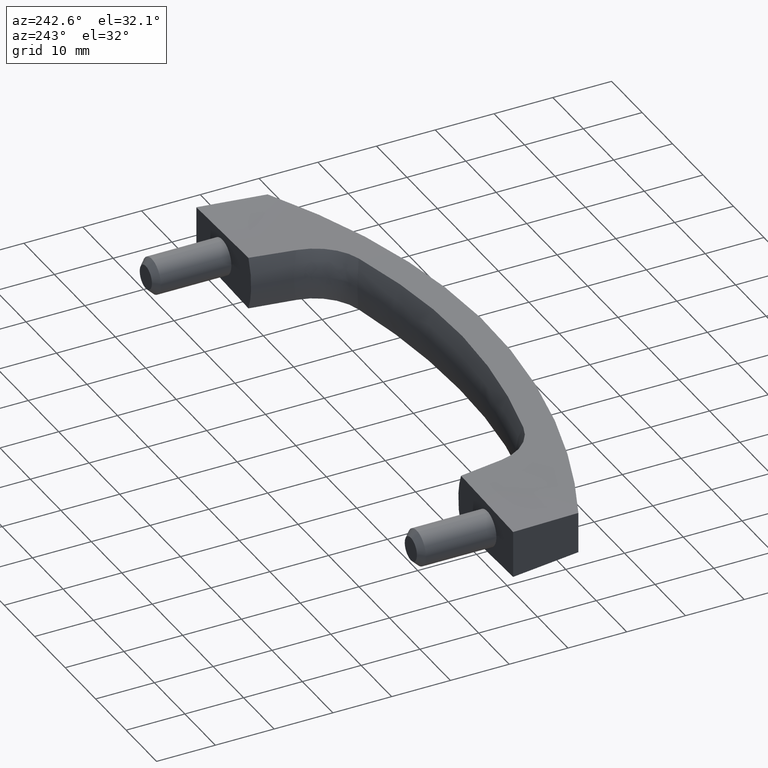
[diagram: clean part render]
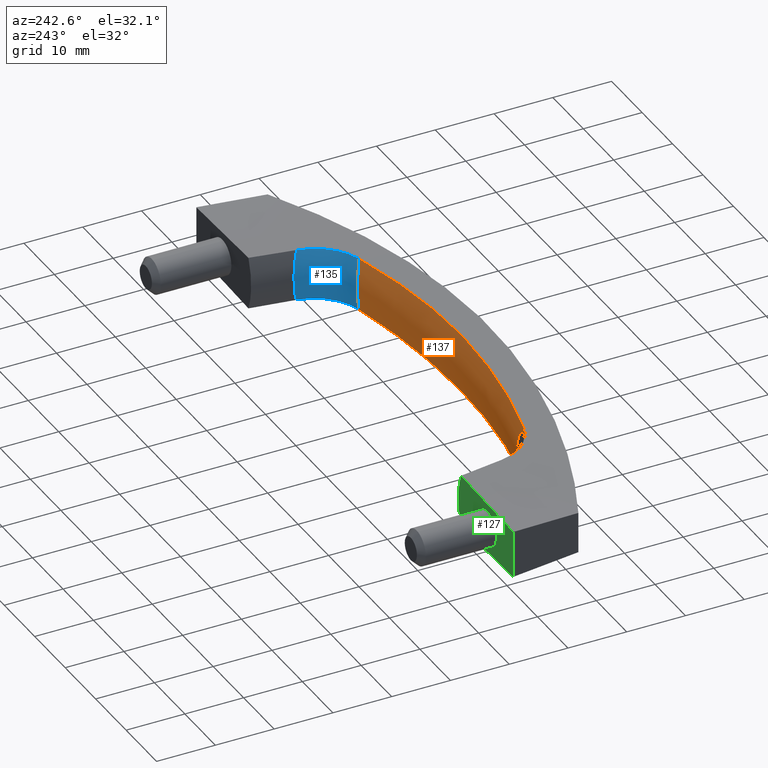
[diagram: same view with three faces highlighted in distinct colors, each labeled with its STEP entity id]
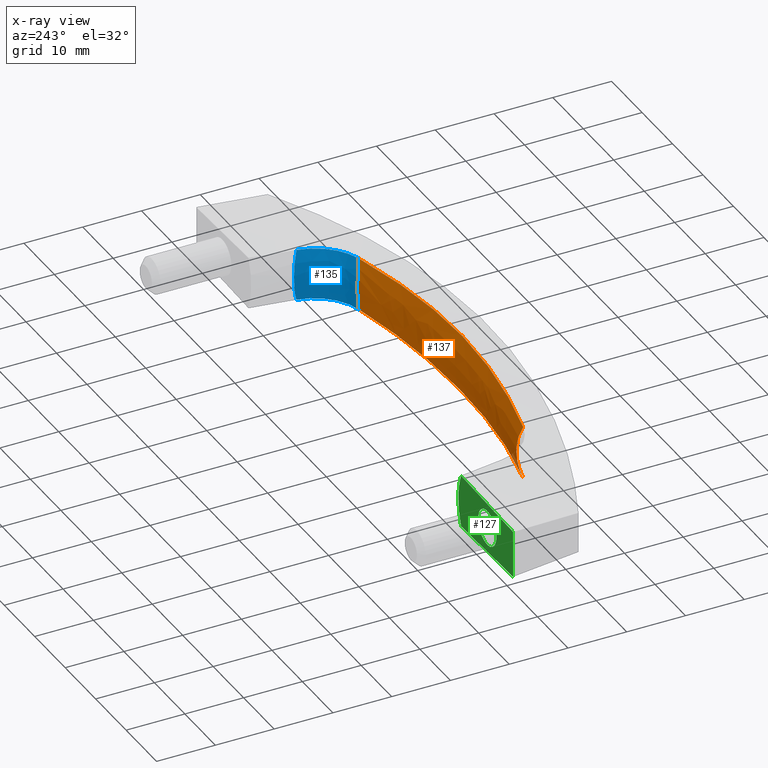
[diagram: x-ray of the same camera — body ghosted, the three highlighted faces saturated]
A machine part, auxiliary view with three faces highlighted in distinct colors.
The next image is the same camera in x-ray (body ghosted, the three faces saturated) — at least one of them is partly hidden behind the body in this view.
Their STEP definitions:

[orange] entity #137 — the highlighted face is a freeform B-spline surface patch.
#137=ADVANCED_FACE('',(#308),#307,.T.);
#307=( BOUNDED_SURFACE() B_SPLINE_SURFACE( 2,2,((#533,#534,#535),(#536,#537,#538),(#539,#540,#541)), .UNSPECIFIED.,.F.,.F.,.F.) B_SPLINE_SURFACE_WITH_KNOTS((3,3),(3,3),(-3.57146278842E+00,-2.71585899099E+00),(4.99483735266E-02,5.23746652897E-01), .UNSPECIFIED. ) GEOMETRIC_REPRESENTATION_ITEM() RATIONAL_B_SPLINE_SURFACE(((9.93526606660E-01,9.65762158628E-01,9.93737543972E-01),(8.56977183283E-01,8.33028656580E-01,8.57159129556E-01),(8.95617688991E-01,8.70589339860E-01,8.95807839095E-01))) REPRESENTATION_ITEM('') SURFACE() );
#308=FACE_OUTER_BOUND('',#542,.T.);
#533=CARTESIAN_POINT('',(-2.70791794804E+01,-5.00103307111E+00,1.48611070524E+01));
#534=CARTESIAN_POINT('',(-1.24314850214E-02,-5.00103307111E+00,2.14134724741E+01));
#535=CARTESIAN_POINT('',(2.70557198976E+01,-5.00103307111E+00,1.48669069322E+01));
#536=CARTESIAN_POINT('',(-2.65378951489E+01,1.69015966202E-02,1.26251501646E+01));
#537=CARTESIAN_POINT('',(-1.21778979101E-02,1.69015966202E-02,1.90465419229E+01));
#538=CARTESIAN_POINT('',(2.65149146883E+01,1.69015966202E-02,1.26308341121E+01));
#539=CARTESIAN_POINT('',(-2.70821991527E+01,5.02893242090E+00,1.48735808238E+01));
#540=CARTESIAN_POINT('',(-1.24328997122E-02,5.02893242090E+00,2.14266769106E+01));
#541=CARTESIAN_POINT('',(2.70587368970E+01,5.02893242090E+00,1.48793813504E+01));
#542=EDGE_LOOP('',(#752,#753,#754,#755));
#752=ORIENTED_EDGE('',*,*,#850,.F.);
#753=ORIENTED_EDGE('',*,*,#855,.F.);
#754=ORIENTED_EDGE('',*,*,#852,.F.);
#755=ORIENTED_EDGE('',*,*,#856,.F.);
#850=EDGE_CURVE('',#1198,#1205,#1206,.T.);
#852=EDGE_CURVE('',#1218,#1219,#1220,.T.);
#855=EDGE_CURVE('',#1219,#1198,#1238,.T.);
#856=EDGE_CURVE('',#1205,#1218,#1244,.T.);
#1198=VERTEX_POINT('',#1647);
#1205=VERTEX_POINT('',#1678);
#1206=(BOUNDED_CURVE() B_SPLINE_CURVE(3,(#1679,#1680,#1681,#1682,#1683,#1684,#1685,#1686,#1687,#1688,#1689,#1690,#1691,#1692,#1693,#1694,#1695,#1696,#1697,#1698),.UNSPECIFIED.,.F.,.F.) B_SPLINE_CURVE_WITH_KNOTS((4,1,1,1,1,1,1,1,1,1,1,1,1,1,1,1,1,4),(5.01032391271E-02,8.13765686135E-02,1.22158677695E-01,1.63065581745E-01,2.04142881568E-01,2.45435184325E-01,2.86986017140E-01,3.28837758395E-01,3.71031586923E-01,4.13607448845E-01,4.56604041392E-01,5.00058812706E-01,5.86527650965E-01,6.71301176410E-01,7.54692940111E-01,8.37036217048E-01,9.18682689601E-01,9.49916614511E-01),.UNSPECIFIED.) CURVE() GEOMETRIC_REPRESENTATION_ITEM() RATIONAL_B_SPLINE_CURVE((1.00000000000E+00,1.00000000000E+00,1.00000000000E+00,1.00000000000E+00,1.00000000000E+00,1.00000000000E+00,1.00000000000E+00,1.00000000000E+00,1.00000000000E+00,1.00000000000E+00,1.00000000000E+00,1.00000000000E+00,1.00000000000E+00,1.00000000000E+00,1.00000000000E+00,1.00000000000E+00,1.00000000000E+00,1.00000000000E+00,1.00000000000E+00,1.00000000000E+00)) REPRESENTATION_ITEM('') );
#1218=VERTEX_POINT('',#1727);
#1219=VERTEX_POINT('',#1728);
#1220=(BOUNDED_CURVE() B_SPLINE_CURVE(3,(#1729,#1730,#1731,#1732,#1733,#1734,#1735,#1736,#1737,#1738,#1739,#1740,#1741,#1742,#1743,#1744,#1745,#1746,#1747,#1748),.UNSPECIFIED.,.F.,.F.) B_SPLINE_CURVE_WITH_KNOTS((4,1,1,1,1,1,1,1,1,1,1,1,1,1,1,1,1,4),(5.01106102151E-02,8.13891816439E-02,1.22176433972E-01,1.63087857125E-01,2.04169165599E-01,2.45465079555E-01,2.87019237803E-01,3.28874128534E-01,3.71071038031E-01,4.13650017099E-01,4.56649864568E-01,5.00108126849E-01,5.86613560427E-01,6.71407478870E-01,7.54802039278E-01,8.37129240514E-01,9.18739650727E-01,9.49955256237E-01),.UNSPECIFIED.) CURVE() GEOMETRIC_REPRESENTATION_ITEM() RATIONAL_B_SPLINE_CURVE((1.00000000000E+00,1.00000000000E+00,1.00000000000E+00,1.00000000000E+00,1.00000000000E+00,1.00000000000E+00,1.00000000000E+00,1.00000000000E+00,1.00000000000E+00,1.00000000000E+00,1.00000000000E+00,1.00000000000E+00,1.00000000000E+00,1.00000000000E+00,1.00000000000E+00,1.00000000000E+00,1.00000000000E+00,1.00000000000E+00,1.00000000000E+00,1.00000000000E+00)) REPRESENTATION_ITEM('') );
#1238=(BOUNDED_CURVE() B_SPLINE_CURVE(3,(#1807,#1808,#1809,#1810,#1811,#1812,#1813,#1814,#1815,#1816,#1817,#1818,#1819,#1820,#1821,#1822,#1823,#1824,#1825,#1826,#1827,#1828,#1829,#1830,#1831,#1832,#1833,#1834,#1835,#1836,#1837,#1838,#1839,#1840,#1841),.UNSPECIFIED.,.F.,.F.) B_SPLINE_CURVE_WITH_KNOTS((4,2,2,2,2,2,2,1,2,2,2,2,2,2,2,2,2,4),(4.20222696700E-06,6.25000000000E-02,1.25000000000E-01,1.87500000000E-01,2.50000000000E-01,3.12500000000E-01,3.75000000000E-01,4.06250000000E-01,4.21875000000E-01,4.37500000000E-01,5.00000000000E-01,6.25000000000E-01,6.87500000000E-01,7.50000000000E-01,8.12500000000E-01,8.75000000000E-01,9.37500000000E-01,9.99995163625E-01),.UNSPECIFIED.) CURVE() GEOMETRIC_REPRESENTATION_ITEM() RATIONAL_B_SPLINE_CURVE((1.00000000000E+00,1.00000000000E+00,1.00000000000E+00,1.00000000000E+00,1.00000000000E+00,1.00000000000E+00,1.00000000000E+00,1.00000000000E+00,1.00000000000E+00,1.00000000000E+00,1.00000000000E+00,1.00000000000E+00,1.00000000000E+00,1.00000000000E+00,1.00000000000E+00,1.00000000000E+00,1.00000000000E+00,1.00000000000E+00,1.00000000000E+00,1.00000000000E+00,1.00000000000E+00,1.00000000000E+00,1.00000000000E+00,1.00000000000E+00,1.00000000000E+00,1.00000000000E+00,1.00000000000E+00,1.00000000000E+00,1.00000000000E+00,1.00000000000E+00,1.00000000000E+00,1.00000000000E+00,1.00000000000E+00,1.00000000000E+00,1.00000000000E+00)) REPRESENTATION_ITEM('') );
#1244=(BOUNDED_CURVE() B_SPLINE_CURVE(3,(#1842,#1843,#1844,#1845,#1846,#1847,#1848,#1849,#1850,#1851,#1852,#1853,#1854,#1855,#1856,#1857,#1858,#1859,#1860,#1861,#1862,#1863,#1864,#1865,#1866,#1867,#1868,#1869,#1870,#1871,#1872,#1873,#1874,#1875,#1876),.UNSPECIFIED.,.F.,.F.) B_SPLINE_CURVE_WITH_KNOTS((4,2,2,2,2,2,2,1,2,2,2,2,2,2,2,2,2,4),(7.89933092900E-06,6.25000000000E-02,1.25000000000E-01,1.87500000000E-01,2.50000000000E-01,3.12500000000E-01,3.75000000000E-01,4.06250000000E-01,4.21875000000E-01,4.37500000000E-01,5.00000000000E-01,6.25000000000E-01,6.87500000000E-01,7.50000000000E-01,8.12500000000E-01,8.75000000000E-01,9.37500000000E-01,9.99992811110E-01),.UNSPECIFIED.) CURVE() GEOMETRIC_REPRESENTATION_ITEM() RATIONAL_B_SPLINE_CURVE((1.00000000000E+00,1.00000000000E+00,1.00000000000E+00,1.00000000000E+00,1.00000000000E+00,1.00000000000E+00,1.00000000000E+00,1.00000000000E+00,1.00000000000E+00,1.00000000000E+00,1.00000000000E+00,1.00000000000E+00,1.00000000000E+00,1.00000000000E+00,1.00000000000E+00,1.00000000000E+00,1.00000000000E+00,1.00000000000E+00,1.00000000000E+00,1.00000000000E+00,1.00000000000E+00,1.00000000000E+00,1.00000000000E+00,1.00000000000E+00,1.00000000000E+00,1.00000000000E+00,1.00000000000E+00,1.00000000000E+00,1.00000000000E+00,1.00000000000E+00,1.00000000000E+00,1.00000000000E+00,1.00000000000E+00,1.00000000000E+00,1.00000000000E+00)) REPRESENTATION_ITEM('') );
#1647=CARTESIAN_POINT('',(2.70090895545E+01,-4.54630436802E+00,1.46756610399E+01));
#1678=CARTESIAN_POINT('',(2.70095754065E+01,4.54628775697E+00,1.46761128301E+01));
#1679=CARTESIAN_POINT('',(2.70090895545E+01,-4.54630436802E+00,1.46756610399E+01));
#1680=CARTESIAN_POINT('',(2.69641790552E+01,-4.45034717228E+00,1.46460118295E+01));
#1681=CARTESIAN_POINT('',(2.68649798829E+01,-4.22662794167E+00,1.45795714677E+01));
#1682=CARTESIAN_POINT('',(2.67217180463E+01,-3.86908159118E+00,1.44813956891E+01));
#1683=CARTESIAN_POINT('',(2.65826884251E+01,-3.47193197829E+00,1.43834056876E+01));
#1684=CARTESIAN_POINT('',(2.64595565307E+01,-3.06559836057E+00,1.42943593780E+01));
#1685=CARTESIAN_POINT('',(2.63525172708E+01,-2.65036629668E+00,1.42150014781E+01));
#1686=CARTESIAN_POINT('',(2.62616400512E+01,-2.22664950828E+00,1.41460178529E+01));
#1687=CARTESIAN_POINT('',(2.61870349635E+01,-1.79488039679E+00,1.40880978005E+01));
#1688=CARTESIAN_POINT('',(2.61288081117E+01,-1.35553927252E+00,1.40419144862E+01));
#1689=CARTESIAN_POINT('',(2.60870747795E+01,-9.09153445531E-01,1.40081263455E+01));
#1690=CARTESIAN_POINT('',(2.60619533284E+01,-4.56276230665E-01,1.39873763545E+01));
#1691=CARTESIAN_POINT('',(2.60508467802E+01,1.51990011319E-01,1.39779630868E+01));
#1692=CARTESIAN_POINT('',(2.60780666891E+01,9.07610217819E-01,1.40010199057E+01));
#1693=CARTESIAN_POINT('',(2.61776281188E+01,1.79538749008E+00,1.40813605656E+01));
#1694=CARTESIAN_POINT('',(2.63424882503E+01,2.65301263121E+00,1.42087330293E+01));
#1695=CARTESIAN_POINT('',(2.65733807891E+01,3.47568037868E+00,1.43782654446E+01));
#1696=CARTESIAN_POINT('',(2.68045180171E+01,4.10321996260E+00,1.45404571318E+01));
#1697=CARTESIAN_POINT('',(2.69641726498E+01,4.45082467450E+00,1.46462678259E+01));
#1698=CARTESIAN_POINT('',(2.70095754065E+01,4.54628775697E+00,1.46761128301E+01));
#1727=CARTESIAN_POINT('',(-2.70083607157E+01,4.54630653269E+00,1.46760137016E+01));
#1728=CARTESIAN_POINT('',(-2.70083776527E+01,-4.54631319703E+00,1.46752387997E+01));
#1729=CARTESIAN_POINT('',(-2.70083607157E+01,4.54630653269E+00,1.46760137016E+01));
#1730=CARTESIAN_POINT('',(-2.69634297569E+01,4.45034444617E+00,1.46463548659E+01));
#1731=CARTESIAN_POINT('',(-2.68641898021E+01,4.22661691181E+00,1.45798917792E+01));
#1732=CARTESIAN_POINT('',(-2.67208776469E+01,3.86905624499E+00,1.44816761587E+01));
#1733=CARTESIAN_POINT('',(-2.65818124983E+01,3.47189252585E+00,1.43836380275E+01));
#1734=CARTESIAN_POINT('',(-2.64586629406E+01,3.06554451934E+00,1.42945384676E+01));
#1735=CARTESIAN_POINT('',(-2.63516239088E+01,2.65029776518E+00,1.42151222617E+01));
#1736=CARTESIAN_POINT('',(-2.62607647224E+01,2.22656603300E+00,1.41460754130E+01));
#1737=CARTESIAN_POINT('',(-2.61861955016E+01,1.79478175571E+00,1.40880873061E+01));
#1738=CARTESIAN_POINT('',(-2.61280220773E+01,1.35542528360E+00,1.40418312573E+01));
#1739=CARTESIAN_POINT('',(-2.60863606219E+01,9.09023955928E-01,1.40079655740E+01));
#1740=CARTESIAN_POINT('',(-2.60613260455E+01,4.56131157505E-01,1.39871341012E+01));
#1741=CARTESIAN_POINT('',(-2.60503700380E+01,-1.52259123283E-01,1.39776020113E+01));
#1742=CARTESIAN_POINT('',(-2.60777386669E+01,-9.08048334834E-01,1.40005392219E+01));
#1743=CARTESIAN_POINT('',(-2.61773361497E+01,-1.79598360318E+00,1.40807982425E+01));
#1744=CARTESIAN_POINT('',(-2.63421009464E+01,-2.65359850582E+00,1.42081062583E+01));
#1745=CARTESIAN_POINT('',(-2.65727515312E+01,-3.47609617738E+00,1.43775599329E+01));
#1746=CARTESIAN_POINT('',(-2.68035949824E+01,-4.10343205481E+00,1.45396677973E+01));
#1747=CARTESIAN_POINT('',(-2.69630392279E+01,-4.45089747712E+00,1.46454148214E+01));
#1748=CARTESIAN_POINT('',(-2.70083776527E+01,-4.54631319703E+00,1.46752387997E+01));
#1807=CARTESIAN_POINT('',(-2.70083776527E+01,-4.54631319703E+00,1.46752387997E+01));
#1808=CARTESIAN_POINT('',(-2.58997967020E+01,-4.57156654375E+00,1.49539948777E+01));
#1809=CARTESIAN_POINT('',(-2.47886685988E+01,-4.59562724488E+00,1.52154196855E+01));
#1810=CARTESIAN_POINT('',(-2.25614801942E+01,-4.64395921185E+00,1.57049150634E+01));
#1811=CARTESIAN_POINT('',(-2.14454177645E+01,-4.66820331160E+00,1.59329745309E+01));
#1812=CARTESIAN_POINT('',(-1.92085008584E+01,-4.71739179139E+00,1.63561074264E+01));
#1813=CARTESIAN_POINT('',(-1.80876455624E+01,-4.74231859653E+00,1.65511774979E+01));
#1814=CARTESIAN_POINT('',(-1.58409585628E+01,-4.79043183861E+00,1.69073811531E+01));
#1815=CARTESIAN_POINT('',(-1.47151266844E+01,-4.81361954101E+00,1.70685133740E+01));
#1816=CARTESIAN_POINT('',(-1.24583939777E+01,-4.85723301927E+00,1.73563379558E+01));
#1817=CARTESIAN_POINT('',(-1.13274942839E+01,-4.87767503836E+00,1.74830360075E+01));
#1818=CARTESIAN_POINT('',(-9.06060325188E+00,-4.91581058788E+00,1.77018347282E+01));
#1819=CARTESIAN_POINT('',(-7.92462167104E+00,-4.93361651198E+00,1.77939878658E+01));
#1820=CARTESIAN_POINT('',(-6.21666410955E+00,-4.95662109969E+00,1.79053389940E+01));
#1821=CARTESIAN_POINT('',(-5.36168820729E+00,-4.96719071073E+00,1.79542901105E+01));
#1822=CARTESIAN_POINT('',(-4.50517674637E+00,-4.97597931889E+00,1.79929301379E+01));
#1823=CARTESIAN_POINT('',(-3.93382311231E+00,-4.98139809919E+00,1.80163718870E+01));
#1824=CARTESIAN_POINT('',(-3.64787030029E+00,-4.98388819794E+00,1.80269368531E+01));
#1825=CARTESIAN_POINT('',(-2.21870693681E+00,-4.99511510143E+00,1.80738519871E+01));
#1826=CARTESIAN_POINT('',(-1.07754462869E+00,-5.00017890868E+00,1.80924819533E+01));
#1827=CARTESIAN_POINT('',(2.33924265709E+00,-4.99961956712E+00,1.80904407923E+01));
#1828=CARTESIAN_POINT('',(4.60819292191E+00,-4.97852933252E+00,1.80120250759E+01));
#1829=CARTESIAN_POINT('',(7.99956449224E+00,-4.93248865789E+00,1.77883744252E+01));
#1830=CARTESIAN_POINT('',(9.12801071877E+00,-4.91473208931E+00,1.76961363307E+01));
#1831=CARTESIAN_POINT('',(1.13810489680E+01,-4.87673180009E+00,1.74774844687E+01));
#1832=CARTESIAN_POINT('',(1.25056326227E+01,-4.85636151013E+00,1.73510121452E+01));
#1833=CARTESIAN_POINT('',(1.47509365249E+01,-4.81290204249E+00,1.70638393703E+01));
#1834=CARTESIAN_POINT('',(1.58716558966E+01,-4.78979669633E+00,1.69031331675E+01));
#1835=CARTESIAN_POINT('',(1.81092884822E+01,-4.74185066424E+00,1.65478780548E+01));
#1836=CARTESIAN_POINT('',(1.92262018707E+01,-4.71700953053E+00,1.63533307650E+01));
#1837=CARTESIAN_POINT('',(2.14563512374E+01,-4.66797307544E+00,1.59312383872E+01));
#1838=CARTESIAN_POINT('',(2.25695876379E+01,-4.64379125348E+00,1.57036953373E+01));
#1839=CARTESIAN_POINT('',(2.47922333489E+01,-4.59555700942E+00,1.52151272960E+01));
#1840=CARTESIAN_POINT('',(2.59016443928E+01,-4.57153219558E+00,1.49541142546E+01));
#1841=CARTESIAN_POINT('',(2.70090895545E+01,-4.54630436802E+00,1.46756610399E+01));
#1842=CARTESIAN_POINT('',(2.70095754065E+01,4.54628775697E+00,1.46761128301E+01));
#1843=CARTESIAN_POINT('',(2.59010449043E+01,4.57154040428E+00,1.49548448979E+01));
#1844=CARTESIAN_POINT('',(2.47899673729E+01,4.59560023889E+00,1.52162473116E+01));
#1845=CARTESIAN_POINT('',(2.25628144891E+01,4.64393163799E+00,1.57057155903E+01));
#1846=CARTESIAN_POINT('',(2.14467367206E+01,4.66817604636E+00,1.59337683779E+01));
#1847=CARTESIAN_POINT('',(1.92097888436E+01,4.71736521059E+00,1.63568873060E+01));
#1848=CARTESIAN_POINT('',(1.80889179291E+01,4.74229256078E+00,1.65519501611E+01));
#1849=CARTESIAN_POINT('',(1.58421994151E+01,4.79040722716E+00,1.69081388996E+01));
#1850=CARTESIAN_POINT('',(1.47163516374E+01,4.81359576515E+00,1.70692634019E+01));
#1851=CARTESIAN_POINT('',(1.24595868255E+01,4.85721093193E+00,1.73570719274E+01));
#1852=CARTESIAN_POINT('',(1.13286709259E+01,4.87765380440E+00,1.74837616415E+01));
#1853=CARTESIAN_POINT('',(9.06174716389E+00,4.91579096111E+00,1.77025430083E+01));
#1854=CARTESIAN_POINT('',(7.92574907183E+00,4.93359779118E+00,1.77946871966E+01));
#1855=CARTESIAN_POINT('',(6.21776652348E+00,4.95660397571E+00,1.79060245257E+01));
#1856=CARTESIAN_POINT('',(5.36277807208E+00,4.96717443677E+00,1.79549686452E+01));
#1857=CARTESIAN_POINT('',(4.50625397619E+00,4.97596396693E+00,1.79936015254E+01));
#1858=CARTESIAN_POINT('',(3.93489189944E+00,4.98138337702E+00,1.80170384757E+01));
#1859=CARTESIAN_POINT('',(3.64893484568E+00,4.98387379837E+00,1.80276010244E+01));
#1860=CARTESIAN_POINT('',(2.21975093924E+00,4.99510234387E+00,1.80745039780E+01));
#1861=CARTESIAN_POINT('',(1.07857212354E+00,5.00016758843E+00,1.80931239872E+01));
#1862=CARTESIAN_POINT('',(-2.33826489718E+00,4.99961270535E+00,1.80910522075E+01));
#1863=CARTESIAN_POINT('',(-4.60724851834E+00,4.97852439582E+00,1.80126145065E+01));
#1864=CARTESIAN_POINT('',(-7.99867039794E+00,4.93248553404E+00,1.77889287336E+01));
#1865=CARTESIAN_POINT('',(-9.12713343933E+00,4.91472937730E+00,1.76966785688E+01));
#1866=CARTESIAN_POINT('',(-1.13802054140E+01,4.87672972529E+00,1.74780019286E+01));
#1867=CARTESIAN_POINT('',(-1.25048059850E+01,4.85635974375E+00,1.73515169335E+01));
#1868=CARTESIAN_POINT('',(-1.47501438210E+01,4.81290080359E+00,1.70643182123E+01));
#1869=CARTESIAN_POINT('',(-1.58708802102E+01,4.78979567557E+00,1.69035987343E+01));
#1870=CARTESIAN_POINT('',(-1.81085469242E+01,4.74184991399E+00,1.65483164260E+01));
#1871=CARTESIAN_POINT('',(-1.92254774224E+01,4.71700881432E+00,1.63537552081E+01));
#1872=CARTESIAN_POINT('',(-2.14556610963E+01,4.66797228293E+00,1.59316343275E+01));
#1873=CARTESIAN_POINT('',(-2.25689146986E+01,4.64379041877E+00,1.57040767316E+01));
#1874=CARTESIAN_POINT('',(-2.47915530814E+01,4.59555707996E+00,1.52154882237E+01));
#1875=CARTESIAN_POINT('',(-2.59009397359E+01,4.57153320769E+00,1.49544705225E+01));
#1876=CARTESIAN_POINT('',(-2.70083607157E+01,4.54630653269E+00,1.46760137016E+01));

[blue] entity #135 — the highlighted face is a freeform B-spline surface patch.
#135=ADVANCED_FACE('',(#288),#287,.F.);
#287=( BOUNDED_SURFACE() B_SPLINE_SURFACE( 2,3,((#471,#472,#473,#474,#475,#476,#477,#478,#479,#480),(#481,#482,#483,#484,#485,#486,#487,#488,#489,#490),(#491,#492,#493,#494,#495,#496,#497,#498,#499,#500)), .UNSPECIFIED.,.F.,.F.,.F.) B_SPLINE_SURFACE_WITH_KNOTS((3,3),(4,2,2,2,4),(5.43510046196E-02,1.09226939032E+01),(6.22924556227E-02,2.11612703864E+00,5.48609420916E+00,8.85606137968E+00,1.09083194965E+01), .UNSPECIFIED. ) GEOMETRIC_REPRESENTATION_ITEM() RATIONAL_B_SPLINE_SURFACE(((9.99994956961E-01,9.99994669131E-01,9.99994404669E-01,9.99993848063E-01,9.99993643005E-01,9.99993641856E-01,9.99993843432E-01,9.99994405354E-01,9.99994669605E-01,9.99994957183E-01),(8.67176646322E-01,8.59595800751E-01,8.52630420611E-01,8.37970556590E-01,8.32569742363E-01,8.32539483741E-01,8.37848590847E-01,8.52648465833E-01,8.59608301227E-01,8.67182505765E-01),(9.99995242191E-01,9.99994970641E-01,9.99994721137E-01,9.99994196012E-01,9.99994002552E-01,9.99994001468E-01,9.99994191643E-01,9.99994721783E-01,9.99994971089E-01,9.99995242401E-01))) REPRESENTATION_ITEM('') SURFACE() );
#288=FACE_OUTER_BOUND('',#501,.T.);
#471=CARTESIAN_POINT('',(3.38503503080E+01,5.10531245932E+00,7.80492327153E+00));
#472=CARTESIAN_POINT('',(3.36246355860E+01,4.53196252203E+00,7.52346889912E+00));
#473=CARTESIAN_POINT('',(3.34270511039E+01,3.91952539551E+00,7.29137912337E+00));
#474=CARTESIAN_POINT('',(3.30198631499E+01,2.24709094330E+00,6.83977432078E+00));
#475=CARTESIAN_POINT('',(3.28772005544E+01,1.13562624406E+00,6.70838462615E+00));
#476=CARTESIAN_POINT('',(3.28764895625E+01,-1.12612292502E+00,6.70720817039E+00));
#477=CARTESIAN_POINT('',(3.30168491434E+01,-2.23248894313E+00,6.83473616686E+00));
#478=CARTESIAN_POINT('',(3.34274701142E+01,-3.92217063195E+00,7.29214225382E+00));
#479=CARTESIAN_POINT('',(3.36248100509E+01,-4.53396105081E+00,7.52362419041E+00));
#480=CARTESIAN_POINT('',(3.38503422391E+01,-5.10631106606E+00,7.80480452540E+00));
#481=CARTESIAN_POINT('',(3.23397700478E+01,3.75782406595E+00,1.29743365900E+01));
#482=CARTESIAN_POINT('',(3.22083356003E+01,3.25839345322E+00,1.28672947959E+01));
#483=CARTESIAN_POINT('',(3.21112665654E+01,2.76386408734E+00,1.27896335826E+01));
#484=CARTESIAN_POINT('',(3.19314180096E+01,1.50437850582E+00,1.26471811962E+01));
#485=CARTESIAN_POINT('',(3.18875442018E+01,7.58580794982E-01,1.26136365594E+01));
#486=CARTESIAN_POINT('',(3.18872698614E+01,-7.52232726521E-01,1.26134529817E+01));
#487=CARTESIAN_POINT('',(3.19299625626E+01,-1.49335533843E+00,1.26461243435E+01));
#488=CARTESIAN_POINT('',(3.21114638454E+01,-2.76588617470E+00,1.27897681496E+01));
#489=CARTESIAN_POINT('',(3.22083030258E+01,-3.25973167751E+00,1.28672492806E+01));
#490=CARTESIAN_POINT('',(3.23396643222E+01,-3.75842982002E+00,1.29742391568E+01));
#491=CARTESIAN_POINT('',(2.72947481237E+01,5.10522572268E+00,1.48598686523E+01));
#492=CARTESIAN_POINT('',(2.69783294492E+01,4.53188870129E+00,1.46600822221E+01));
#493=CARTESIAN_POINT('',(2.67169993774E+01,3.91952751157E+00,1.44829296605E+01));
#494=CARTESIAN_POINT('',(2.62076326655E+01,2.24709227990E+00,1.41147400437E+01));
#495=CARTESIAN_POINT('',(2.60585538049E+01,1.13562691821E+00,1.39826840601E+01));
#496=CARTESIAN_POINT('',(2.60572468599E+01,-1.12612359350E+00,1.39820709757E+01));
#497=CARTESIAN_POINT('',(2.62020335188E+01,-2.23249027310E+00,1.41121593932E+01));
#498=CARTESIAN_POINT('',(2.67178451947E+01,-3.92217274919E+00,1.44832844275E+01));
#499=CARTESIAN_POINT('',(2.69785233908E+01,-4.53390879847E+00,1.46602616401E+01));
#500=CARTESIAN_POINT('',(2.72946390139E+01,-5.10624952252E+00,1.48598902075E+01));
#501=EDGE_LOOP('',(#744,#745,#746,#747));
#744=ORIENTED_EDGE('',*,*,#845,.T.);
#745=ORIENTED_EDGE('',*,*,#849,.F.);
#746=ORIENTED_EDGE('',*,*,#850,.T.);
#747=ORIENTED_EDGE('',*,*,#851,.F.);
#845=EDGE_CURVE('',#1158,#1165,#1172,.T.);
#849=EDGE_CURVE('',#1198,#1165,#1199,.T.);
#850=EDGE_CURVE('',#1198,#1205,#1206,.T.);
#851=EDGE_CURVE('',#1158,#1205,#1212,.T.);
#1158=VERTEX_POINT('',#1607);
#1165=VERTEX_POINT('',#1612);
#1172=(BOUNDED_CURVE() B_SPLINE_CURVE(3,(#1617,#1618,#1619,#1620,#1621,#1622,#1623,#1624,#1625,#1626),.UNSPECIFIED.,.F.,.F.) B_SPLINE_CURVE_WITH_KNOTS((4,2,2,2,4),(9.39908681399E-03,1.04825952617E-02,1.33334647073E-02,1.61843341529E-02,1.72654891420E-02),.UNSPECIFIED.) CURVE() GEOMETRIC_REPRESENTATION_ITEM() RATIONAL_B_SPLINE_CURVE((1.00000000000E+00,1.00000000000E+00,1.00000000000E+00,1.00000000000E+00,1.00000000000E+00,1.00000000000E+00,1.00000000000E+00,1.00000000000E+00,1.00000000000E+00,1.00000000000E+00)) REPRESENTATION_ITEM('') );
#1198=VERTEX_POINT('',#1647);
#1199=(BOUNDED_CURVE() B_SPLINE_CURVE(3,(#1648,#1649,#1650,#1651,#1652,#1653,#1654,#1655,#1656,#1657,#1658,#1659,#1660,#1661,#1662,#1663,#1664,#1665,#1666,#1667,#1668,#1669,#1670,#1671,#1672,#1673,#1674,#1675,#1676,#1677),.UNSPECIFIED.,.F.,.F.) B_SPLINE_CURVE_WITH_KNOTS((4,2,2,2,2,2,2,2,2,2,2,2,2,2,4),(2.54889762800E-05,1.25000000000E-01,2.50000000000E-01,2.81250000000E-01,3.12500000000E-01,3.75000000000E-01,5.00000000000E-01,5.62500000000E-01,5.93750000000E-01,6.25000000000E-01,7.50000000000E-01,8.12500000000E-01,8.43750000000E-01,8.75000000000E-01,9.99983046679E-01),.UNSPECIFIED.) CURVE() GEOMETRIC_REPRESENTATION_ITEM() RATIONAL_B_SPLINE_CURVE((1.00000000000E+00,1.00000000000E+00,1.00000000000E+00,1.00000000000E+00,1.00000000000E+00,1.00000000000E+00,1.00000000000E+00,1.00000000000E+00,1.00000000000E+00,1.00000000000E+00,1.00000000000E+00,1.00000000000E+00,1.00000000000E+00,1.00000000000E+00,1.00000000000E+00,1.00000000000E+00,1.00000000000E+00,1.00000000000E+00,1.00000000000E+00,1.00000000000E+00,1.00000000000E+00,1.00000000000E+00,1.00000000000E+00,1.00000000000E+00,1.00000000000E+00,1.00000000000E+00,1.00000000000E+00,1.00000000000E+00,1.00000000000E+00,1.00000000000E+00)) REPRESENTATION_ITEM('') );
#1205=VERTEX_POINT('',#1678);
#1206=(BOUNDED_CURVE() B_SPLINE_CURVE(3,(#1679,#1680,#1681,#1682,#1683,#1684,#1685,#1686,#1687,#1688,#1689,#1690,#1691,#1692,#1693,#1694,#1695,#1696,#1697,#1698),.UNSPECIFIED.,.F.,.F.) B_SPLINE_CURVE_WITH_KNOTS((4,1,1,1,1,1,1,1,1,1,1,1,1,1,1,1,1,4),(5.01032391271E-02,8.13765686135E-02,1.22158677695E-01,1.63065581745E-01,2.04142881568E-01,2.45435184325E-01,2.86986017140E-01,3.28837758395E-01,3.71031586923E-01,4.13607448845E-01,4.56604041392E-01,5.00058812706E-01,5.86527650965E-01,6.71301176410E-01,7.54692940111E-01,8.37036217048E-01,9.18682689601E-01,9.49916614511E-01),.UNSPECIFIED.) CURVE() GEOMETRIC_REPRESENTATION_ITEM() RATIONAL_B_SPLINE_CURVE((1.00000000000E+00,1.00000000000E+00,1.00000000000E+00,1.00000000000E+00,1.00000000000E+00,1.00000000000E+00,1.00000000000E+00,1.00000000000E+00,1.00000000000E+00,1.00000000000E+00,1.00000000000E+00,1.00000000000E+00,1.00000000000E+00,1.00000000000E+00,1.00000000000E+00,1.00000000000E+00,1.00000000000E+00,1.00000000000E+00,1.00000000000E+00,1.00000000000E+00)) REPRESENTATION_ITEM('') );
#1212=(BOUNDED_CURVE() B_SPLINE_CURVE(3,(#1699,#1700,#1701,#1702,#1703,#1704,#1705,#1706,#1707,#1708,#1709,#1710,#1711,#1712,#1713,#1714,#1715,#1716,#1717,#1718,#1719,#1720,#1721,#1722,#1723,#1724,#1725,#1726),.UNSPECIFIED.,.F.,.F.) B_SPLINE_CURVE_WITH_KNOTS((4,2,2,2,2,2,2,2,2,2,2,2,2,4),(1.92430852220E-05,1.25000000000E-01,2.50000000000E-01,2.81250000000E-01,3.12500000000E-01,3.75000000000E-01,5.00000000000E-01,5.62500000000E-01,5.93750000000E-01,6.25000000000E-01,7.50000000000E-01,8.75000000000E-01,9.37500000000E-01,9.99986105413E-01),.UNSPECIFIED.) CURVE() GEOMETRIC_REPRESENTATION_ITEM() RATIONAL_B_SPLINE_CURVE((1.00000000000E+00,1.00000000000E+00,1.00000000000E+00,1.00000000000E+00,1.00000000000E+00,1.00000000000E+00,1.00000000000E+00,1.00000000000E+00,1.00000000000E+00,1.00000000000E+00,1.00000000000E+00,1.00000000000E+00,1.00000000000E+00,1.00000000000E+00,1.00000000000E+00,1.00000000000E+00,1.00000000000E+00,1.00000000000E+00,1.00000000000E+00,1.00000000000E+00,1.00000000000E+00,1.00000000000E+00,1.00000000000E+00,1.00000000000E+00,1.00000000000E+00,1.00000000000E+00,1.00000000000E+00,1.00000000000E+00)) REPRESENTATION_ITEM('') );
#1607=CARTESIAN_POINT('',(3.36079919887E+01,4.44234619461E+00,7.50870683689E+00));
#1612=CARTESIAN_POINT('',(3.36077143909E+01,-4.44236560942E+00,7.50822396491E+00));
#1617=CARTESIAN_POINT('',(3.36079919887E+01,4.44234619461E+00,7.50870683689E+00));
#1618=CARTESIAN_POINT('',(3.34817898410E+01,4.06805428581E+00,7.35739402988E+00));
#1619=CARTESIAN_POINT('',(3.33687618457E+01,3.68122838872E+00,7.22699393425E+00));
#1620=CARTESIAN_POINT('',(3.30196202607E+01,2.24714156865E+00,6.83974667419E+00));
#1621=CARTESIAN_POINT('',(3.28769683031E+01,1.13565964133E+00,6.70835322455E+00));
#1622=CARTESIAN_POINT('',(3.28762857523E+01,-1.12612449107E+00,6.70717297390E+00));
#1623=CARTESIAN_POINT('',(3.30166625592E+01,-2.23250769471E+00,6.83470095313E+00));
#1624=CARTESIAN_POINT('',(3.33686758733E+01,-3.68093806182E+00,7.22679730359E+00));
#1625=CARTESIAN_POINT('',(3.34817242025E+01,-4.06844351877E+00,7.35724045392E+00));
#1626=CARTESIAN_POINT('',(3.36077143909E+01,-4.44236560942E+00,7.50822396491E+00));
#1647=CARTESIAN_POINT('',(2.70090895545E+01,-4.54630436802E+00,1.46756610399E+01));
#1648=CARTESIAN_POINT('',(2.70090895545E+01,-4.54630436802E+00,1.46756610399E+01));
#1649=CARTESIAN_POINT('',(2.74291957650E+01,-4.53673525886E+00,1.45698908912E+01));
#1650=CARTESIAN_POINT('',(2.78369205825E+01,-4.52754966954E+00,1.44357969404E+01));
#1651=CARTESIAN_POINT('',(2.86281741984E+01,-4.51005325837E+00,1.41120341518E+01));
#1652=CARTESIAN_POINT('',(2.90116985300E+01,-4.50174176668E+00,1.39223551365E+01));
#1653=CARTESIAN_POINT('',(2.94753022204E+01,-4.49194832913E+00,1.36491028440E+01));
#1654=CARTESIAN_POINT('',(2.95672291279E+01,-4.49001940532E+00,1.35926361511E+01));
#1655=CARTESIAN_POINT('',(2.97494640574E+01,-4.48622228686E+00,1.34759988559E+01));
#1656=CARTESIAN_POINT('',(2.98397314556E+01,-4.48435500958E+00,1.34158413974E+01));
#1657=CARTESIAN_POINT('',(3.01058223015E+01,-4.47889141762E+00,1.32313160265E+01));
#1658=CARTESIAN_POINT('',(3.02777116616E+01,-4.47541579804E+00,1.31024163325E+01));
#1659=CARTESIAN_POINT('',(3.07771869938E+01,-4.46551059772E+00,1.26984111997E+01));
#1660=CARTESIAN_POINT('',(3.10886498972E+01,-4.45959923716E+00,1.24060742036E+01));
#1661=CARTESIAN_POINT('',(3.15235327020E+01,-4.45193182722E+00,1.19330324581E+01));
#1662=CARTESIAN_POINT('',(3.16630910119E+01,-4.44957695957E+00,1.17695772650E+01));
#1663=CARTESIAN_POINT('',(3.18641565471E+01,-4.44637593421E+00,1.15155525260E+01));
#1664=CARTESIAN_POINT('',(3.19299284239E+01,-4.44536234822E+00,1.14292194436E+01));
#1665=CARTESIAN_POINT('',(3.20578070093E+01,-4.44346415629E+00,1.12547577459E+01));
#1666=CARTESIAN_POINT('',(3.21199555449E+01,-4.44257871951E+00,1.11665922144E+01));
#1667=CARTESIAN_POINT('',(3.24219096409E+01,-4.43847408629E+00,1.07211773290E+01));
#1668=CARTESIAN_POINT('',(3.26354782699E+01,-4.43621925082E+00,1.03502335220E+01));
#1669=CARTESIAN_POINT('',(3.29154033996E+01,-4.43450369183E+00,9.77271564128E+00));
#1670=CARTESIAN_POINT('',(3.30019483865E+01,-4.43421026551E+00,9.57667938546E+00));
#1671=CARTESIAN_POINT('',(3.31215902021E+01,-4.43420892341E+00,9.27731351494E+00));
#1672=CARTESIAN_POINT('',(3.31597733016E+01,-4.43428164863E+00,9.17663882865E+00));
#1673=CARTESIAN_POINT('',(3.32327200898E+01,-4.43457747169E+00,8.97350458236E+00));
#1674=CARTESIAN_POINT('',(3.32675261696E+01,-4.43480100067E+00,8.87090930083E+00));
#1675=CARTESIAN_POINT('',(3.34323467962E+01,-4.43629993537E+00,8.35522500935E+00));
#1676=CARTESIAN_POINT('',(3.35345751108E+01,-4.43870898018E+00,7.93533481968E+00));
#1677=CARTESIAN_POINT('',(3.36077143909E+01,-4.44236560942E+00,7.50822396491E+00));
#1678=CARTESIAN_POINT('',(2.70095754065E+01,4.54628775697E+00,1.46761128301E+01));
#1679=CARTESIAN_POINT('',(2.70090895545E+01,-4.54630436802E+00,1.46756610399E+01));
#1680=CARTESIAN_POINT('',(2.69641790552E+01,-4.45034717228E+00,1.46460118295E+01));
#1681=CARTESIAN_POINT('',(2.68649798829E+01,-4.22662794167E+00,1.45795714677E+01));
#1682=CARTESIAN_POINT('',(2.67217180463E+01,-3.86908159118E+00,1.44813956891E+01));
#1683=CARTESIAN_POINT('',(2.65826884251E+01,-3.47193197829E+00,1.43834056876E+01));
#1684=CARTESIAN_POINT('',(2.64595565307E+01,-3.06559836057E+00,1.42943593780E+01));
#1685=CARTESIAN_POINT('',(2.63525172708E+01,-2.65036629668E+00,1.42150014781E+01));
#1686=CARTESIAN_POINT('',(2.62616400512E+01,-2.22664950828E+00,1.41460178529E+01));
#1687=CARTESIAN_POINT('',(2.61870349635E+01,-1.79488039679E+00,1.40880978005E+01));
#1688=CARTESIAN_POINT('',(2.61288081117E+01,-1.35553927252E+00,1.40419144862E+01));
#1689=CARTESIAN_POINT('',(2.60870747795E+01,-9.09153445531E-01,1.40081263455E+01));
#1690=CARTESIAN_POINT('',(2.60619533284E+01,-4.56276230665E-01,1.39873763545E+01));
#1691=CARTESIAN_POINT('',(2.60508467802E+01,1.51990011319E-01,1.39779630868E+01));
#1692=CARTESIAN_POINT('',(2.60780666891E+01,9.07610217819E-01,1.40010199057E+01));
#1693=CARTESIAN_POINT('',(2.61776281188E+01,1.79538749008E+00,1.40813605656E+01));
#1694=CARTESIAN_POINT('',(2.63424882503E+01,2.65301263121E+00,1.42087330293E+01));
#1695=CARTESIAN_POINT('',(2.65733807891E+01,3.47568037868E+00,1.43782654446E+01));
#1696=CARTESIAN_POINT('',(2.68045180171E+01,4.10321996260E+00,1.45404571318E+01));
#1697=CARTESIAN_POINT('',(2.69641726498E+01,4.45082467450E+00,1.46462678259E+01));
#1698=CARTESIAN_POINT('',(2.70095754065E+01,4.54628775697E+00,1.46761128301E+01));
#1699=CARTESIAN_POINT('',(3.36079919887E+01,4.44234619461E+00,7.50870683689E+00));
#1700=CARTESIAN_POINT('',(3.35348692305E+01,4.43868899322E+00,7.93582137752E+00));
#1701=CARTESIAN_POINT('',(3.34331150637E+01,4.43630276945E+00,8.35298417937E+00));
#1702=CARTESIAN_POINT('',(3.31734746612E+01,4.43390456890E+00,9.16786877809E+00));
#1703=CARTESIAN_POINT('',(3.30155823151E+01,4.43389322095E+00,9.56558845175E+00));
#1704=CARTESIAN_POINT('',(3.27816833203E+01,4.43530145786E+00,1.00500392721E+01));
#1705=CARTESIAN_POINT('',(3.27330679955E+01,4.43565438892E+00,1.01462914219E+01));
#1706=CARTESIAN_POINT('',(3.26320928280E+01,4.43650194326E+00,1.03374941490E+01));
#1707=CARTESIAN_POINT('',(3.25796591584E+01,4.43699752290E+00,1.04325581896E+01));
#1708=CARTESIAN_POINT('',(3.24179618443E+01,4.43868071794E+00,1.07134849552E+01));
#1709=CARTESIAN_POINT('',(3.23039573937E+01,4.44006691913E+00,1.08957933304E+01));
#1710=CARTESIAN_POINT('',(3.19436328236E+01,4.44495715054E+00,1.14280372103E+01));
#1711=CARTESIAN_POINT('',(3.16790822541E+01,4.44918927959E+00,1.17633562302E+01));
#1712=CARTESIAN_POINT('',(3.12454531306E+01,4.45681876780E+00,1.22368296884E+01));
#1713=CARTESIAN_POINT('',(3.10947559879E+01,4.45957636493E+00,1.23897204473E+01));
#1714=CARTESIAN_POINT('',(3.08592512129E+01,4.46402055079E+00,1.26114735580E+01));
#1715=CARTESIAN_POINT('',(3.07791049523E+01,4.46555459897E+00,1.26841845047E+01));
#1716=CARTESIAN_POINT('',(3.06158841168E+01,4.46871833577E+00,1.28267855631E+01));
#1717=CARTESIAN_POINT('',(3.05331989887E+01,4.47034043323E+00,1.28963399991E+01));
#1718=CARTESIAN_POINT('',(3.01144945063E+01,4.47864076182E+00,1.32355358536E+01));
#1719=CARTESIAN_POINT('',(2.97627098985E+01,4.48587285153E+00,1.34795645338E+01));
#1720=CARTESIAN_POINT('',(2.90267121357E+01,4.50141219357E+00,1.39149396135E+01));
#1721=CARTESIAN_POINT('',(2.86425032025E+01,4.50973147823E+00,1.41062924575E+01));
#1722=CARTESIAN_POINT('',(2.80413805596E+01,4.52302040465E+00,1.43530179241E+01));
#1723=CARTESIAN_POINT('',(2.78381933183E+01,4.52755543948E+00,1.44279532690E+01));
#1724=CARTESIAN_POINT('',(2.74274428463E+01,4.53679391707E+00,1.45630111874E+01));
#1725=CARTESIAN_POINT('',(2.72197004320E+01,4.54150130898E+00,1.46232111167E+01));
#1726=CARTESIAN_POINT('',(2.70095754065E+01,4.54628775697E+00,1.46761128301E+01));

[green] entity #127 — the highlighted planar face has unit normal (-0, 1, 0).
#127=ADVANCED_FACE('',(#206,#207),#205,.T.);
#205=PLANE('',#432);
#206=FACE_OUTER_BOUND('',#433,.T.);
#207=FACE_BOUND('',#434,.T.);
#429=CARTESIAN_POINT('',(-5.38960583211E+01,-5.40726770418E+00,1.08323553601E-11));
#430=DIRECTION('',(-2.39958982255E-13,5.15766261143E-12,-1.00000000000E+00));
#431=DIRECTION('',(0.00000000000E+00,1.00000000000E+00,5.15766261143E-12));
#432=AXIS2_PLACEMENT_3D('',#429,#430,#431);
#433=EDGE_LOOP('',(#708,#709,#710,#711));
#434=EDGE_LOOP('',(#712,#713,#714));
#708=ORIENTED_EDGE('',*,*,#817,.F.);
#709=ORIENTED_EDGE('',*,*,#818,.T.);
#710=ORIENTED_EDGE('',*,*,#819,.T.);
#711=ORIENTED_EDGE('',*,*,#820,.F.);
#712=ORIENTED_EDGE('',*,*,#821,.F.);
#713=ORIENTED_EDGE('',*,*,#822,.F.);
#714=ORIENTED_EDGE('',*,*,#823,.F.);
#817=EDGE_CURVE('',#978,#979,#980,.T.);
#818=EDGE_CURVE('',#978,#986,#987,.T.);
#819=EDGE_CURVE('',#986,#993,#994,.T.);
#820=EDGE_CURVE('',#979,#993,#1000,.T.);
#821=EDGE_CURVE('',#1006,#1007,#1008,.T.);
#822=EDGE_CURVE('',#1014,#1006,#1015,.T.);
#823=EDGE_CURVE('',#1007,#1014,#1021,.T.);
#978=VERTEX_POINT('',#1359);
#979=VERTEX_POINT('',#1360);
#980=(BOUNDED_CURVE() B_SPLINE_CURVE(2,(#1361,#1362,#1363),.UNSPECIFIED.,.F.,.F.) B_SPLINE_CURVE_WITH_KNOTS((3,3),(0.00000000000E+00,1.00000000000E+00),.UNSPECIFIED.) CURVE() GEOMETRIC_REPRESENTATION_ITEM() RATIONAL_B_SPLINE_CURVE((1.00000000000E+00,9.26820489101E-01,1.00000000000E+00)) REPRESENTATION_ITEM('') );
#986=VERTEX_POINT('',#1364);
#987=(BOUNDED_CURVE() B_SPLINE_CURVE(3,(#1365,#1366,#1367,#1368,#1369),.UNSPECIFIED.,.F.,.F.) B_SPLINE_CURVE_WITH_KNOTS((4,1,4),(8.51182230981E-01,9.00797359185E-01,1.00000000000E+00),.UNSPECIFIED.) CURVE() GEOMETRIC_REPRESENTATION_ITEM() RATIONAL_B_SPLINE_CURVE((1.00000000000E+00,1.00000000000E+00,1.00000000000E+00,1.00000000000E+00,1.00000000000E+00)) REPRESENTATION_ITEM('') );
#993=VERTEX_POINT('',#1370);
#994=LINE('',#1371,#1372);
#1000=(BOUNDED_CURVE() B_SPLINE_CURVE(3,(#1374,#1375,#1376,#1377,#1378),.UNSPECIFIED.,.F.,.F.) B_SPLINE_CURVE_WITH_KNOTS((4,1,4),(8.51182230981E-01,9.00797359185E-01,1.00000000000E+00),.UNSPECIFIED.) CURVE() GEOMETRIC_REPRESENTATION_ITEM() RATIONAL_B_SPLINE_CURVE((1.00000000000E+00,1.00000000000E+00,1.00000000000E+00,1.00000000000E+00,1.00000000000E+00)) REPRESENTATION_ITEM('') );
#1006=VERTEX_POINT('',#1379);
#1007=VERTEX_POINT('',#1380);
#1008=CIRCLE('',#1384,3.00000000000E+00);
#1014=VERTEX_POINT('',#1385);
#1015=CIRCLE('',#1389,3.00000000000E+00);
#1021=CIRCLE('',#1393,3.00000000000E+00);
#1359=CARTESIAN_POINT('',(-3.48903901518E+01,-4.50605642015E+00,2.66798000000E-13));
#1360=CARTESIAN_POINT('',(-3.48903901517E+01,4.50605642015E+00,5.73941500000E-11));
#1361=CARTESIAN_POINT('',(-3.48903901518E+01,-4.50605642015E+00,2.66798000000E-13));
#1362=CARTESIAN_POINT('',(-3.30393067889E+01,1.96459000000E-12,3.37092500000E-11));
#1363=CARTESIAN_POINT('',(-3.48903901517E+01,4.50605642015E+00,5.73941500000E-11));
#1364=CARTESIAN_POINT('',(-5.19999900000E+01,-4.00000000000E+00,-2.44249100000E-12));
#1365=CARTESIAN_POINT('',(-3.48903901518E+01,-4.50605642015E+00,2.66798000000E-13));
#1366=CARTESIAN_POINT('',(-3.65120586636E+01,-4.43931217298E+00,3.15670500000E-13));
#1367=CARTESIAN_POINT('',(-4.15325422034E+01,-4.21431154822E+00,1.97716500000E-13));
#1368=CARTESIAN_POINT('',(-4.78132439789E+01,-4.08571984683E+00,-2.05262500000E-12));
#1369=CARTESIAN_POINT('',(-5.19999900000E+01,-4.00000000000E+00,-2.44249100000E-12));
#1370=CARTESIAN_POINT('',(-5.19999900000E+01,4.00000000000E+00,-8.88178400000E-13));
#1371=CARTESIAN_POINT('',(-5.19999900000E+01,-4.00000000000E+00,-2.44249100000E-12));
#1372=VECTOR('',#1373,8.00000000000E+00);
#1373=DIRECTION('',(-1.15463194561E-14,1.00000000000E+00,1.94289075000E-13));
#1374=CARTESIAN_POINT('',(-3.48903901517E+01,4.50605642015E+00,5.73941500000E-11));
#1375=CARTESIAN_POINT('',(-3.65120586636E+01,4.43931217298E+00,1.18376400000E-13));
#1376=CARTESIAN_POINT('',(-4.15325422034E+01,4.21431154822E+00,7.41436800000E-14));
#1377=CARTESIAN_POINT('',(-4.78132439789E+01,4.08571984683E+00,-7.69734400000E-13));
#1378=CARTESIAN_POINT('',(-5.19999900000E+01,4.00000000000E+00,-8.88178400000E-13));
#1379=CARTESIAN_POINT('',(-4.38541016146E+01,2.97902870858E+00,8.51649621620E-17));
#1380=CARTESIAN_POINT('',(-4.05000000000E+01,1.66533453694E-15,7.75494920300E-16));
#1381=CARTESIAN_POINT('',(-4.35000000000E+01,-9.54791801178E-15,6.38780595447E-17));
#1382=DIRECTION('',(2.37205620252E-16,3.53409805776E-17,-1.00000000000E+00));
#1383=DIRECTION('',(1.00000000000E+00,3.35842464949E-15,2.37205620252E-16));
#1384=AXIS2_PLACEMENT_3D('',#1381,#1382,#1383);
#1385=CARTESIAN_POINT('',(-4.31453824164E+01,-2.97896733272E+00,4.27157167692E-17));
#1386=CARTESIAN_POINT('',(-4.35000000000E+01,-9.54791801178E-15,6.38780595447E-17));
#1387=DIRECTION('',(2.37205620252E-16,3.53409805776E-17,-1.00000000000E+00));
#1388=DIRECTION('',(1.00000000000E+00,3.35842464949E-15,2.37205620252E-16));
#1389=AXIS2_PLACEMENT_3D('',#1386,#1387,#1388);
#1390=CARTESIAN_POINT('',(-4.35000000000E+01,-9.54791801178E-15,6.38780595447E-17));
#1391=DIRECTION('',(2.37205620252E-16,3.53409805776E-17,-1.00000000000E+00));
#1392=DIRECTION('',(1.00000000000E+00,3.35842464949E-15,2.37205620252E-16));
#1393=AXIS2_PLACEMENT_3D('',#1390,#1391,#1392);